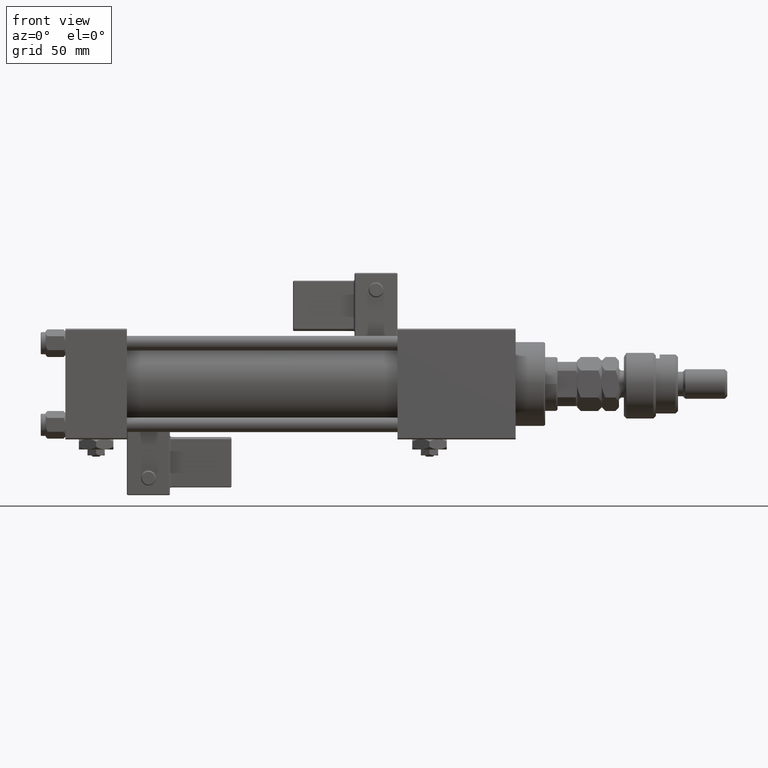
[diagram: clean part render]
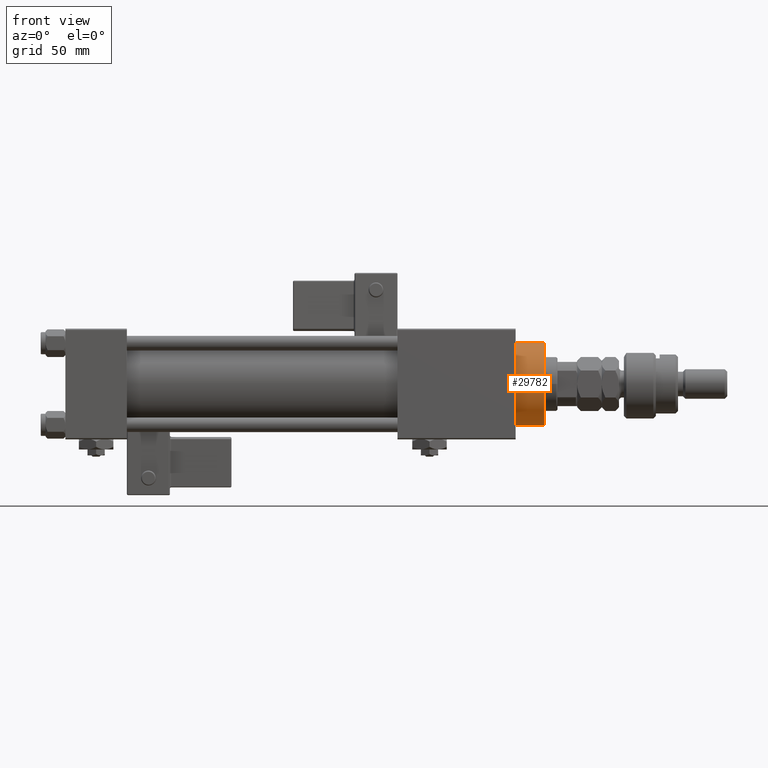
[diagram: same view with one face highlighted and labeled with its STEP entity id]
A machine part, front view. The second image highlights one B-rep face of the part: STEP entity #29782.
In plain terms, the highlighted cylindrical surface (partial cylindrical patch) has radius 17 mm, axis along (-1, -0, -0).
Its self-contained STEP definition (entity closure, byte-faithful):
#933 = CARTESIAN_POINT ( 'NONE',  ( 0.000000000000000000, 0.000000000000000000, 28.69999999999999929 ) ) ;
#1876 = AXIS2_PLACEMENT_3D ( 'NONE', #8409, #2889, #15958 ) ;
#2881 = CIRCLE ( 'NONE', #17743, 17.00000000000000000 ) ;
#2889 = DIRECTION ( 'NONE',  ( 0.000000000000000000, 0.000000000000000000, -1.000000000000000000 ) ) ;
#3793 = ORIENTED_EDGE ( 'NONE', *, *, #32223, .F. ) ;
#5927 = AXIS2_PLACEMENT_3D ( 'NONE', #21200, #15200, #56327 ) ;
#6945 = VECTOR ( 'NONE', #28281, 1000.000000000000000 ) ;
#7027 = VERTEX_POINT ( 'NONE', #41453 ) ;
#7783 = EDGE_CURVE ( 'NONE', #9901, #39464, #2881, .T. ) ;
#8409 = CARTESIAN_POINT ( 'NONE',  ( 0.000000000000000000, 0.000000000000000000, 40.19999999999999574 ) ) ;
#9901 = VERTEX_POINT ( 'NONE', #50328 ) ;
#10501 = DIRECTION ( 'NONE',  ( 1.000000000000000000, 0.000000000000000000, 0.000000000000000000 ) ) ;
#10562 = CARTESIAN_POINT ( 'NONE',  ( 17.00000000000000000, 2.081899558550500280E-15, 40.70000000000000284 ) ) ;
#15200 = DIRECTION ( 'NONE',  ( -0.000000000000000000, -0.000000000000000000, -1.000000000000000000 ) ) ;
#15318 = ORIENTED_EDGE ( 'NONE', *, *, #52199, .T. ) ;
#15958 = DIRECTION ( 'NONE',  ( 1.000000000000000000, 0.000000000000000000, 0.000000000000000000 ) ) ;
#17743 = AXIS2_PLACEMENT_3D ( 'NONE', #933, #50310, #10501 ) ;
#21200 = CARTESIAN_POINT ( 'NONE',  ( 0.000000000000000000, 0.000000000000000000, 40.70000000000000284 ) ) ;
#21498 = CYLINDRICAL_SURFACE ( 'NONE', #5927, 17.00000000000000000 ) ;
#23643 = LINE ( 'NONE', #10562, #6945 ) ;
#25086 = LINE ( 'NONE', #29748, #34283 ) ;
#26776 = EDGE_LOOP ( 'NONE', ( #3793, #15318, #34933, #50815 ) ) ;
#27888 = CIRCLE ( 'NONE', #1876, 17.00000000000000000 ) ;
#28281 = DIRECTION ( 'NONE',  ( -0.000000000000000000, -0.000000000000000000, -1.000000000000000000 ) ) ;
#28638 = CARTESIAN_POINT ( 'NONE',  ( 17.00000000000000000, 2.081899558550500280E-15, 40.19999999999999574 ) ) ;
#29748 = CARTESIAN_POINT ( 'NONE',  ( -17.00000000000000000, 0.000000000000000000, 40.70000000000000284 ) ) ;
#29782 = ADVANCED_FACE ( 'NONE', ( #37296 ), #21498, .T. ) ;
#30288 = VERTEX_POINT ( 'NONE', #28638 ) ;
#32223 = EDGE_CURVE ( 'NONE', #30288, #39464, #23643, .T. ) ;
#34283 = VECTOR ( 'NONE', #43106, 1000.000000000000000 ) ;
#34933 = ORIENTED_EDGE ( 'NONE', *, *, #47134, .T. ) ;
#37296 = FACE_OUTER_BOUND ( 'NONE', #26776, .T. ) ;
#39464 = VERTEX_POINT ( 'NONE', #51685 ) ;
#41453 = CARTESIAN_POINT ( 'NONE',  ( -17.00000000000000000, 0.000000000000000000, 40.19999999999999574 ) ) ;
#43106 = DIRECTION ( 'NONE',  ( -0.000000000000000000, -0.000000000000000000, -1.000000000000000000 ) ) ;
#47134 = EDGE_CURVE ( 'NONE', #7027, #9901, #25086, .T. ) ;
#50310 = DIRECTION ( 'NONE',  ( 0.000000000000000000, 0.000000000000000000, 1.000000000000000000 ) ) ;
#50328 = CARTESIAN_POINT ( 'NONE',  ( -17.00000000000000000, 0.000000000000000000, 28.69999999999999929 ) ) ;
#50815 = ORIENTED_EDGE ( 'NONE', *, *, #7783, .T. ) ;
#51685 = CARTESIAN_POINT ( 'NONE',  ( 17.00000000000000000, 2.081899558550500280E-15, 28.69999999999999929 ) ) ;
#52199 = EDGE_CURVE ( 'NONE', #30288, #7027, #27888, .T. ) ;
#56327 = DIRECTION ( 'NONE',  ( -1.000000000000000000, 0.000000000000000000, 0.000000000000000000 ) ) ;